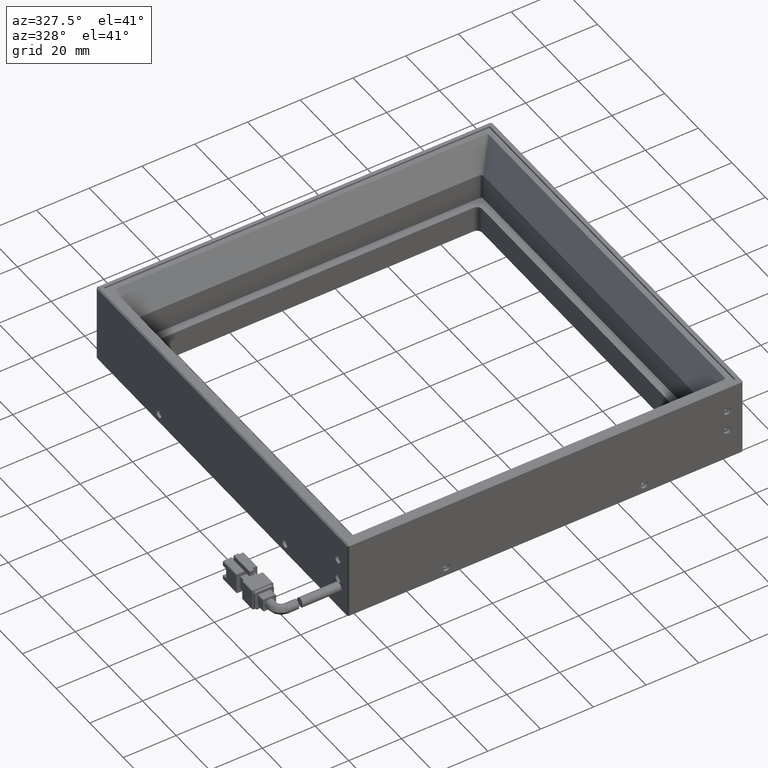
[diagram: clean part render]
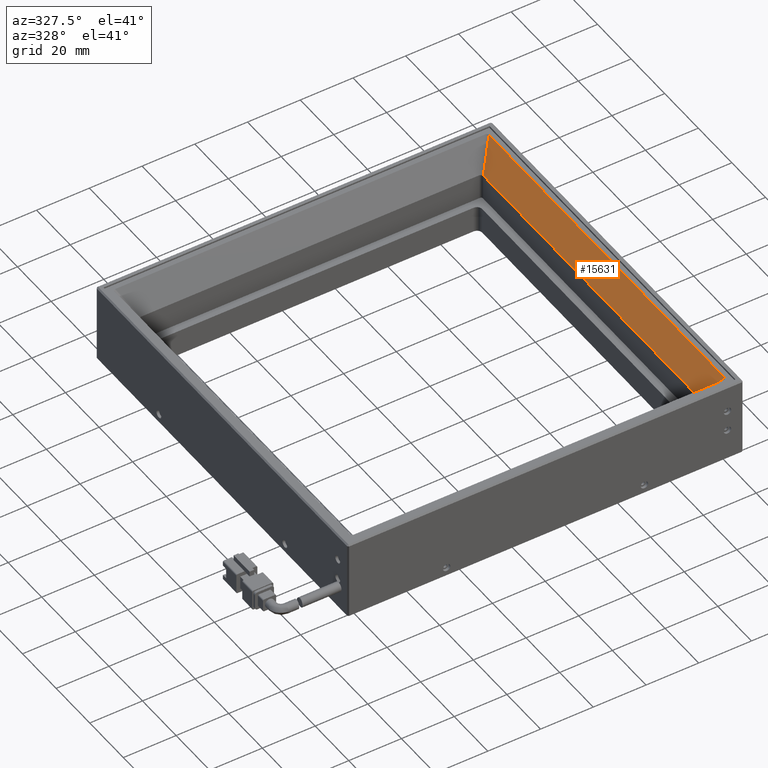
[diagram: same view with one face highlighted and labeled with its STEP entity id]
A machine part, auxiliary view. The second image highlights one B-rep face of the part: STEP entity #15631.
In plain terms, the highlighted planar face has unit normal (-0.866, -0, 0.5).
Its self-contained STEP definition (entity closure, byte-faithful):
#299 = FACE_OUTER_BOUND ( 'NONE', #15166, .T. ) ;
#783 = VECTOR ( 'NONE', #8756, 999.9999999999998900 ) ;
#1071 = ORIENTED_EDGE ( 'NONE', *, *, #11000, .T. ) ;
#1337 = CARTESIAN_POINT ( 'NONE',  ( 55.26824938067707600, 74.84938067712633400, 14.58090023534363400 ) ) ;
#1639 = CARTESIAN_POINT ( 'NONE',  ( 61.16824938067711100, 81.74938067712635400, 24.80000000000006100 ) ) ;
#2044 = VECTOR ( 'NONE', #8414, 1000.000000000000000 ) ;
#2478 = EDGE_CURVE ( 'NONE', #15968, #14496, #5214, .T. ) ;
#2527 = CARTESIAN_POINT ( 'NONE',  ( 55.26027907694423600, -53.47662361535638800, 14.56709526432651600 ) ) ;
#2572 = ORIENTED_EDGE ( 'NONE', *, *, #20015, .T. ) ;
#2818 = CARTESIAN_POINT ( 'NONE',  ( 61.16824938067712500, -62.25061932287367500, 24.79999999999996900 ) ) ;
#2892 = CARTESIAN_POINT ( 'NONE',  ( 55.26558907533137000, 74.93357944073882500, 14.57629245132123500 ) ) ;
#3361 = DIRECTION ( 'NONE',  ( 0.5000000000000005600, -5.219729915644643500E-016, 0.8660254037844382600 ) ) ;
#4444 = DIRECTION ( 'NONE',  ( -7.978533672646619300E-017, 1.000000000000000000, 6.487865800153258500E-016 ) ) ;
#4957 = ORIENTED_EDGE ( 'NONE', *, *, #16117, .T. ) ;
#5214 = LINE ( 'NONE', #19563, #783 ) ;
#5587 = AXIS2_PLACEMENT_3D ( 'NONE', #1639, #13420, #3361 ) ;
#5982 =( BOUNDED_CURVE ( )  B_SPLINE_CURVE ( 3, ( #19813, #2892, #11482, #1337 ),
 .UNSPECIFIED., .F., .F. ) 
 B_SPLINE_CURVE_WITH_KNOTS ( ( 4, 4 ),
 ( 3.015252526018735500, 3.141592653589806000 ),
 .UNSPECIFIED. ) 
 CURVE ( )  GEOMETRIC_REPRESENTATION_ITEM ( )  RATIONAL_B_SPLINE_CURVE ( ( 1.000000000000000000, 0.9986702899479100700, 0.9986702899479100700, 1.000000000000000000 ) ) 
 REPRESENTATION_ITEM ( '' )  );
#6678 = CARTESIAN_POINT ( 'NONE',  ( 55.26824938067706200, 81.74938067712635400, 14.58090023534363200 ) ) ;
#7207 = LINE ( 'NONE', #16347, #7750 ) ;
#7512 = CARTESIAN_POINT ( 'NONE',  ( 55.26824938067707600, -53.35061932287364100, 14.58090023534353600 ) ) ;
#7750 = VECTOR ( 'NONE', #15465, 1000.000000000000200 ) ;
#8414 = DIRECTION ( 'NONE',  ( 1.530835117677396900E-016, -1.000000000000000000, -6.911053011065134600E-016 ) ) ;
#8756 = DIRECTION ( 'NONE',  ( 0.4472135954999589800, -0.4472135954999563200, 0.7745966692414838500 ) ) ;
#11000 = EDGE_CURVE ( 'NONE', #14408, #13527, #7207, .T. ) ;
#11482 = CARTESIAN_POINT ( 'NONE',  ( 55.26824938067707600, 74.89152208582363800, 14.58090023534364500 ) ) ;
#12628 = CARTESIAN_POINT ( 'NONE',  ( 55.26558907533137700, -53.43481808648613200, 14.57629245132112700 ) ) ;
#12801 =( BOUNDED_CURVE ( )  B_SPLINE_CURVE ( 3, ( #7512, #17542, #12628, #2527 ),
 .UNSPECIFIED., .F., .T. ) 
 B_SPLINE_CURVE_WITH_KNOTS ( ( 4, 4 ),
 ( 3.141592653589806000, 3.267932781160863200 ),
 .UNSPECIFIED. ) 
 CURVE ( )  GEOMETRIC_REPRESENTATION_ITEM ( )  RATIONAL_B_SPLINE_CURVE ( ( 1.000000000000000000, 0.9986702899479104100, 0.9986702899479104100, 1.000000000000000000 ) ) 
 REPRESENTATION_ITEM ( '' )  );
#12908 = LINE ( 'NONE', #2818, #16814 ) ;
#13336 = CARTESIAN_POINT ( 'NONE',  ( 55.26824938067707600, 74.84938067712633400, 14.58090023534363400 ) ) ;
#13420 = DIRECTION ( 'NONE',  ( -0.8660254037844383700, -4.781268606446537900E-016, 0.5000000000000006700 ) ) ;
#13527 = VERTEX_POINT ( 'NONE', #21641 ) ;
#14330 = ORIENTED_EDGE ( 'NONE', *, *, #14423, .T. ) ;
#14393 = CARTESIAN_POINT ( 'NONE',  ( 55.26027907694423600, -53.47662361535638800, 14.56709526432651600 ) ) ;
#14408 = VERTEX_POINT ( 'NONE', #14626 ) ;
#14423 = EDGE_CURVE ( 'NONE', #13527, #17888, #5982, .T. ) ;
#14496 = VERTEX_POINT ( 'NONE', #21688 ) ;
#14626 = CARTESIAN_POINT ( 'NONE',  ( 61.16824938067711100, 80.88335527334190500, 24.80000000000006100 ) ) ;
#14995 = PLANE ( 'NONE',  #5587 ) ;
#15166 = EDGE_LOOP ( 'NONE', ( #2572, #16636, #18963, #1071, #14330, #4957 ) ) ;
#15447 = LINE ( 'NONE', #6678, #2044 ) ;
#15458 = EDGE_CURVE ( 'NONE', #14496, #14408, #12908, .T. ) ;
#15465 = DIRECTION ( 'NONE',  ( -0.4472135954999588700, -0.4472135954999542600, -0.7745966692414848500 ) ) ;
#15631 = ADVANCED_FACE ( 'NONE', ( #299 ), #14995, .T. ) ;
#15968 = VERTEX_POINT ( 'NONE', #14393 ) ;
#16117 = EDGE_CURVE ( 'NONE', #17888, #21633, #15447, .T. ) ;
#16306 = CARTESIAN_POINT ( 'NONE',  ( 55.26824938067707600, -53.35061932287364100, 14.58090023534353600 ) ) ;
#16347 = CARTESIAN_POINT ( 'NONE',  ( 61.16824938067711100, 80.88335527334190500, 24.80000000000006100 ) ) ;
#16636 = ORIENTED_EDGE ( 'NONE', *, *, #2478, .T. ) ;
#16814 = VECTOR ( 'NONE', #4444, 1000.000000000000000 ) ;
#17542 = CARTESIAN_POINT ( 'NONE',  ( 55.26824938067707600, -53.39276073157095200, 14.58090023534353500 ) ) ;
#17888 = VERTEX_POINT ( 'NONE', #13336 ) ;
#18963 = ORIENTED_EDGE ( 'NONE', *, *, #15458, .T. ) ;
#19563 = CARTESIAN_POINT ( 'NONE',  ( 55.26027907694425100, -53.47662361535638800, 14.56709526432652500 ) ) ;
#19813 = CARTESIAN_POINT ( 'NONE',  ( 55.26027907694425100, 74.97538496960909500, 14.56709526432662100 ) ) ;
#20015 = EDGE_CURVE ( 'NONE', #21633, #15968, #12801, .T. ) ;
#21633 = VERTEX_POINT ( 'NONE', #16306 ) ;
#21641 = CARTESIAN_POINT ( 'NONE',  ( 55.26027907694425100, 74.97538496960909500, 14.56709526432662100 ) ) ;
#21688 = CARTESIAN_POINT ( 'NONE',  ( 61.16824938067712500, -59.38459391908921200, 24.79999999999997200 ) ) ;